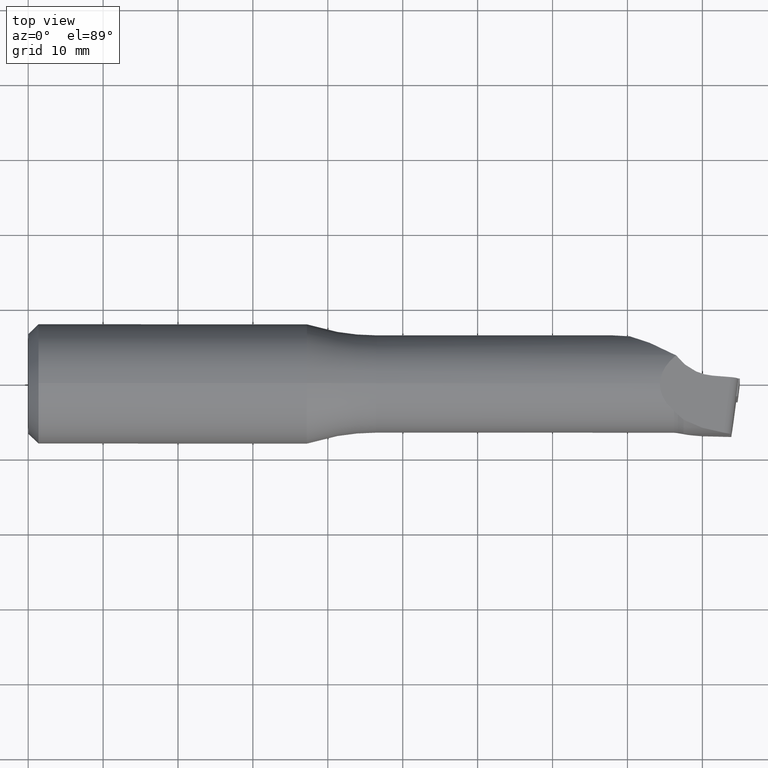
[diagram: clean part render]
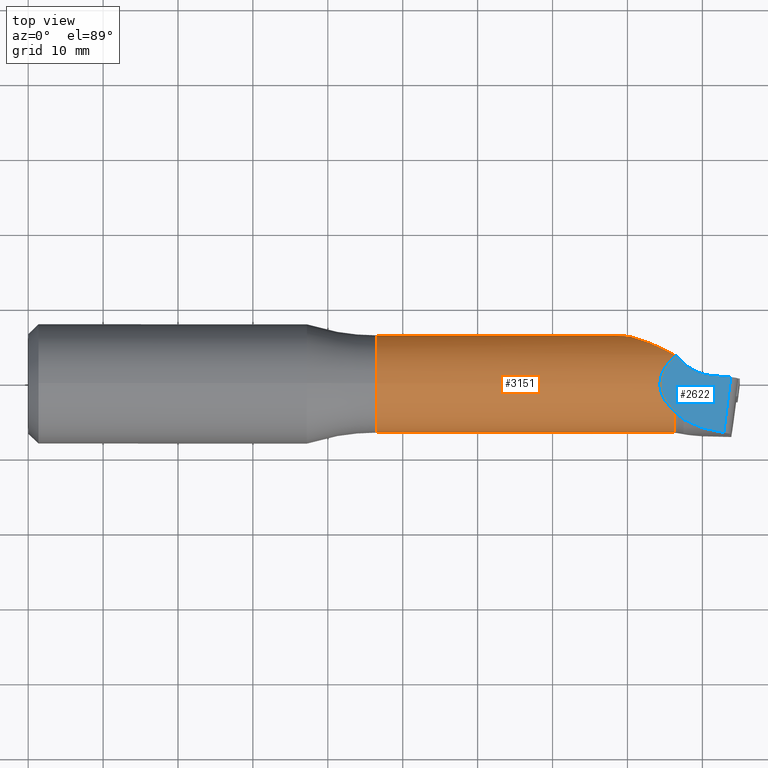
[diagram: same view with the hole feature highlighted: cylindrical wall and planar end face, labeled with their STEP entity ids]
A machine part, top view. The highlighted faces form one hole feature of diameter 13.05 mm: the cylindrical wall (entity #3151, orange) and its adjacent planar end face (entity #2622, blue) — they share a circular edge in the B-rep.
Wall:
#60 = CARTESIAN_POINT ( 'NONE',  ( 86.23061127999569900, -3.702845871241291500, 5.372574564753041000 ) ) ;
#86 = DIRECTION ( 'NONE',  ( -1.000000000000000000, -0.0000000000000000000, -0.0000000000000000000 ) ) ;
#91 = CARTESIAN_POINT ( 'NONE',  ( 85.65121490969625000, -1.614038353073226300, -6.334743030728534800 ) ) ;
#105 = CIRCLE ( 'NONE', #718, 6.524999999999999500 ) ;
#106 = CARTESIAN_POINT ( 'NONE',  ( 86.23061127999569900, -4.355790491442360400, -4.858262466629438900 ) ) ;
#133 = CARTESIAN_POINT ( 'NONE',  ( 85.95065152410997200, -3.593082822807023700, -5.450120725736031300 ) ) ;
#147 = CARTESIAN_POINT ( 'NONE',  ( 76.46034890174081500, 6.149994192479361700, -2.224178600920144100 ) ) ;
#216 = CARTESIAN_POINT ( 'NONE',  ( 81.10959519269270900, -0.005562088175553078800, -6.525286672151020500 ) ) ;
#363 = EDGE_CURVE ( 'NONE', #2031, #420, #2911, .T. ) ;
#376 = AXIS2_PLACEMENT_3D ( 'NONE', #2570, #1516, #406 ) ;
#406 = DIRECTION ( 'NONE',  ( 0.0000000000000000000, 0.0000000000000000000, 1.000000000000000000 ) ) ;
#412 = CARTESIAN_POINT ( 'NONE',  ( 85.99741047501888100, -3.755744622499114000, -5.339248468892365400 ) ) ;
#420 = VERTEX_POINT ( 'NONE', #106 ) ;
#434 = B_SPLINE_CURVE_WITH_KNOTS ( 'NONE', 3,
 ( #683, #1235, #1546, #2884, #2325, #966, #2871, #1207, #3114, #1739, #1245, #1528, #147, #2063, #2338, #2599, #976, #1578, #1324, #2940, #2375, #449, #506, #2653, #2909, #2385, #3173, #1857, #2090, #1035, #755, #987, #1308, #3496, #2897, #1602, #2612, #3234, #3217, #3510, #3203, #2626, #3467, #216, #2141, #1553 ),
 .UNSPECIFIED., .F., .F.,
 ( 4, 2, 2, 2, 2, 2, 2, 2, 2, 2, 2, 2, 2, 2, 2, 2, 2, 2, 2, 2, 2, 2, 4 ),
 ( 0.0000000000000000000, 0.003347499554930291700, 0.005021249332395436900, 0.006694999109860583400, 0.01004249866479090500, 0.01171624844225605300, 0.01338999821972119800, 0.01506374799718634500, 0.01590062288591890400, 0.01631906033028519500, 0.01673749777465148600, 0.01715593521901777300, 0.01757437266338406100, 0.01799281010775034800, 0.01841124755211663600, 0.01882968499648292000, 0.01924812244084920700, 0.02008499732958177900, 0.02092187221831435700, 0.02175874710704693200, 0.02343249688451208200, 0.02510624666197723200, 0.02677999643944238600 ),
 .UNSPECIFIED. ) ;
#444 = EDGE_CURVE ( 'NONE', #3481, #3481, #3382, .T. ) ;
#449 = CARTESIAN_POINT ( 'NONE',  ( 74.46071014795448700, 4.115041673605922800, -5.065714872911455800 ) ) ;
#506 = CARTESIAN_POINT ( 'NONE',  ( 74.44396656498213400, 4.005101328589423900, -5.153149368889238200 ) ) ;
#585 = ORIENTED_EDGE ( 'NONE', *, *, #444, .F. ) ;
#620 = CARTESIAN_POINT ( 'NONE',  ( 82.23619642221048300, -0.03573079569139822600, -6.524902168633604800 ) ) ;
#683 = CARTESIAN_POINT ( 'NONE',  ( 86.23061127999569900, 3.858172834153674300, 5.262140950392588200 ) ) ;
#693 = DIRECTION ( 'NONE',  ( 1.000000000000000000, 0.0000000000000000000, 0.0000000000000000000 ) ) ;
#709 = LINE ( 'NONE', #1291, #2205 ) ;
#718 = AXIS2_PLACEMENT_3D ( 'NONE', #1531, #1780, #2065 ) ;
#742 = CARTESIAN_POINT ( 'NONE',  ( 86.23061127999569900, 3.858172834153674300, 5.262140950392588200 ) ) ;
#755 = CARTESIAN_POINT ( 'NONE',  ( 74.82766434348297900, 2.606149237644900500, -5.983085736255825200 ) ) ;
#760 = EDGE_LOOP ( 'NONE', ( #585 ) ) ;
#901 = DIRECTION ( 'NONE',  ( 0.0000000000000000000, 0.0000000000000000000, 1.000000000000000000 ) ) ;
#953 = CARTESIAN_POINT ( 'NONE',  ( 85.65092830108879700, -0.03573079569122290800, -6.524902168633004400 ) ) ;
#966 = CARTESIAN_POINT ( 'NONE',  ( 81.72435886483985700, 5.943105887355356400, 2.717766312071919100 ) ) ;
#976 = CARTESIAN_POINT ( 'NONE',  ( 74.84265935526859400, 4.983410941142663500, -4.220092962777843400 ) ) ;
#987 = CARTESIAN_POINT ( 'NONE',  ( 74.98932085734387000, 2.389859570945962000, -6.072717678883399200 ) ) ;
#991 = EDGE_CURVE ( 'NONE', #1801, #2150, #2106, .T. ) ;
#992 = CARTESIAN_POINT ( 'NONE',  ( -3.175455607189903200, 0.0000000000000000000, 0.0000000000000000000 ) ) ;
#1035 = CARTESIAN_POINT ( 'NONE',  ( 74.75552049374699900, 2.717677429860034400, -5.933480203728634300 ) ) ;
#1040 = CYLINDRICAL_SURFACE ( 'NONE', #1732, 6.525000000000001200 ) ;
#1050 = CARTESIAN_POINT ( 'NONE',  ( 86.23061127999569900, 3.499725246554350900, 5.507045323822031200 ) ) ;
#1072 = EDGE_LOOP ( 'NONE', ( #2690, #3523, #1585, #2142, #1952, #1527 ) ) ;
#1207 = CARTESIAN_POINT ( 'NONE',  ( 80.03744620957932900, 6.434889271027337500, 1.312441113708917100 ) ) ;
#1209 = CARTESIAN_POINT ( 'NONE',  ( 85.82748502602081000, -3.092544355887509900, -5.758952577806411500 ) ) ;
#1235 = CARTESIAN_POINT ( 'NONE',  ( 85.25865749983371700, 4.325289461866348400, 4.919653605334288700 ) ) ;
#1245 = CARTESIAN_POINT ( 'NONE',  ( 77.60874603235870900, 6.456180310566815600, -1.029434732691144600 ) ) ;
#1291 = CARTESIAN_POINT ( 'NONE',  ( -3.175455607189906700, -0.03573079569149054800, -6.524902168633585300 ) ) ;
#1302 = CARTESIAN_POINT ( 'NONE',  ( 86.23061127999569900, -3.702845871241291500, 5.372574564753041000 ) ) ;
#1308 = CARTESIAN_POINT ( 'NONE',  ( 75.07921436551718800, 2.284867520326124200, -6.112780343141059400 ) ) ;
#1324 = CARTESIAN_POINT ( 'NONE',  ( 74.63122522758861500, 4.626425176592463600, -4.603291921419359900 ) ) ;
#1408 = EDGE_CURVE ( 'NONE', #1440, #1959, #434, .T. ) ;
#1440 = VERTEX_POINT ( 'NONE', #742 ) ;
#1442 = FACE_OUTER_BOUND ( 'NONE', #760, .T. ) ;
#1516 = DIRECTION ( 'NONE',  ( -1.000000000000000000, -0.0000000000000000000, -0.0000000000000000000 ) ) ;
#1527 = ORIENTED_EDGE ( 'NONE', *, *, #1408, .T. ) ;
#1528 = CARTESIAN_POINT ( 'NONE',  ( 76.83630588780749800, 6.277715265940339700, -1.825456411750528800 ) ) ;
#1531 = CARTESIAN_POINT ( 'NONE',  ( 86.23061127999569900, 0.0000000000000000000, 0.0000000000000000000 ) ) ;
#1546 = CARTESIAN_POINT ( 'NONE',  ( 84.34692601890260700, 4.797780989750240400, 4.474824379446401300 ) ) ;
#1553 = CARTESIAN_POINT ( 'NONE',  ( 82.23619642221048300, -0.03573079569139822600, -6.524902168633604800 ) ) ;
#1578 = CARTESIAN_POINT ( 'NONE',  ( 74.68002190042261600, 4.719026884751423600, -4.508147770059248500 ) ) ;
#1585 = ORIENTED_EDGE ( 'NONE', *, *, #1605, .T. ) ;
#1602 = CARTESIAN_POINT ( 'NONE',  ( 76.03284611181113900, 1.481527842799918100, -6.356830922926667100 ) ) ;
#1605 = EDGE_CURVE ( 'NONE', #420, #1801, #1691, .T. ) ;
#1691 = CIRCLE ( 'NONE', #3134, 6.524999999999999500 ) ;
#1720 = CARTESIAN_POINT ( 'NONE',  ( 85.67885006257741100, -2.003627855350393400, -6.222363190622492500 ) ) ;
#1732 = AXIS2_PLACEMENT_3D ( 'NONE', #992, #3459, #2631 ) ;
#1739 = CARTESIAN_POINT ( 'NONE',  ( 78.00651606336556700, 6.506424541765675900, -0.6313227019914711100 ) ) ;
#1780 = DIRECTION ( 'NONE',  ( -1.000000000000000000, -0.0000000000000000000, -0.0000000000000000000 ) ) ;
#1801 = VERTEX_POINT ( 'NONE', #1302 ) ;
#1857 = CARTESIAN_POINT ( 'NONE',  ( 74.57821308855164900, 3.067447976232391400, -5.760624856454017000 ) ) ;
#1952 = ORIENTED_EDGE ( 'NONE', *, *, #2025, .T. ) ;
#1959 = VERTEX_POINT ( 'NONE', #620 ) ;
#2025 = EDGE_CURVE ( 'NONE', #2150, #1440, #105, .T. ) ;
#2031 = VERTEX_POINT ( 'NONE', #953 ) ;
#2043 = CARTESIAN_POINT ( 'NONE',  ( 86.23061127999569900, -4.355790491442360400, -4.858262466629438900 ) ) ;
#2063 = CARTESIAN_POINT ( 'NONE',  ( 75.74170042579481800, 5.795526035033889300, -3.030062209520679500 ) ) ;
#2065 = DIRECTION ( 'NONE',  ( 0.0000000000000000000, 0.0000000000000000000, 1.000000000000000000 ) ) ;
#2090 = CARTESIAN_POINT ( 'NONE',  ( 74.63081790112879300, 2.947933436709585700, -5.822512034641050600 ) ) ;
#2106 =( BOUNDED_CURVE ( )  B_SPLINE_CURVE ( 3, ( #60, #2545, #2825, #3371 ),
 .UNSPECIFIED., .F., .F. ) 
 B_SPLINE_CURVE_WITH_KNOTS ( ( 4, 4 ),
 ( 5.698403643467864700, 6.867966970891306900 ),
 .UNSPECIFIED. ) 
 CURVE ( )  GEOMETRIC_REPRESENTATION_ITEM ( )  RATIONAL_B_SPLINE_CURVE ( ( 1.000000000000000000, 0.8892217541185157800, 0.8892217541185157800, 1.000000000000000000 ) ) 
 REPRESENTATION_ITEM ( '' )  );
#2141 = CARTESIAN_POINT ( 'NONE',  ( 81.67064380493312100, -0.03573079569129727900, -6.524902168633588000 ) ) ;
#2142 = ORIENTED_EDGE ( 'NONE', *, *, #991, .T. ) ;
#2150 = VERTEX_POINT ( 'NONE', #1050 ) ;
#2205 = VECTOR ( 'NONE', #693, 1000.000000000000000 ) ;
#2288 = CARTESIAN_POINT ( 'NONE',  ( 85.63143692249637700, -0.4362650223973131800, -6.522708816725765000 ) ) ;
#2305 = CARTESIAN_POINT ( 'NONE',  ( 85.76717458828004200, -2.741158867276664200, -5.934507251920775800 ) ) ;
#2325 = CARTESIAN_POINT ( 'NONE',  ( 82.58795335344841200, 5.605870402943085500, 3.358716769952128100 ) ) ;
#2338 = CARTESIAN_POINT ( 'NONE',  ( 75.40592117706322000, 5.573526455028678900, -3.428080811893543100 ) ) ;
#2375 = CARTESIAN_POINT ( 'NONE',  ( 74.51217623063583100, 4.327516703230375400, -4.885451292604592800 ) ) ;
#2385 = CARTESIAN_POINT ( 'NONE',  ( 74.46991696561278200, 3.422598059609077000, -5.557082363059018700 ) ) ;
#2545 = CARTESIAN_POINT ( 'NONE',  ( 83.62285550286804900, -1.479362768084573300, 6.905027047090453800 ) ) ;
#2558 = CARTESIAN_POINT ( 'NONE',  ( 85.65092830108879700, -0.03573079569122290800, -6.524902168633004400 ) ) ;
#2561 = EDGE_CURVE ( 'NONE', #1959, #2031, #709, .T. ) ;
#2570 = CARTESIAN_POINT ( 'NONE',  ( 46.49999999999998600, 0.0000000000000000000, 0.0000000000000000000 ) ) ;
#2583 = CARTESIAN_POINT ( 'NONE',  ( 86.16252283513057400, -4.214430662660859600, -4.985001975313537900 ) ) ;
#2591 = CARTESIAN_POINT ( 'NONE',  ( 86.10331338750017900, -4.066042293082052300, -5.106906299597486800 ) ) ;
#2599 = CARTESIAN_POINT ( 'NONE',  ( 74.97308660399096400, 5.142450855959150900, -4.023791960761554900 ) ) ;
#2612 = CARTESIAN_POINT ( 'NONE',  ( 76.27504901142019400, 1.334577627042732300, -6.388465429668203300 ) ) ;
#2626 = CARTESIAN_POINT ( 'NONE',  ( 79.44511042653418500, 0.2097157157928928600, -6.522909333174473200 ) ) ;
#2631 = DIRECTION ( 'NONE',  ( 0.0000000000000000000, 0.0000000000000000000, 1.000000000000000000 ) ) ;
#2653 = CARTESIAN_POINT ( 'NONE',  ( 74.43177676948199900, 3.777147863742521800, -5.322493690534314800 ) ) ;
#2690 = ORIENTED_EDGE ( 'NONE', *, *, #2561, .T. ) ;
#2825 = CARTESIAN_POINT ( 'NONE',  ( 83.62285550286804900, 1.220590340513384400, 6.955434705414965000 ) ) ;
#2871 = CARTESIAN_POINT ( 'NONE',  ( 81.29584264792087800, 6.088941533274301300, 2.374675800230689600 ) ) ;
#2884 = CARTESIAN_POINT ( 'NONE',  ( 83.02242154298181700, 5.415129143645363500, 3.656334779634766700 ) ) ;
#2897 = CARTESIAN_POINT ( 'NONE',  ( 75.57644927276415100, 1.808826083859220900, -6.271552625149422700 ) ) ;
#2909 = CARTESIAN_POINT ( 'NONE',  ( 74.43666107217158900, 3.658493508904053100, -5.404698614425080400 ) ) ;
#2911 = B_SPLINE_CURVE_WITH_KNOTS ( 'NONE', 3,
 ( #2558, #2288, #3106, #91, #1720, #2305, #1209, #133, #412, #2591, #2583, #2043 ),
 .UNSPECIFIED., .F., .F.,
 ( 4, 2, 2, 2, 2, 4 ),
 ( 0.0001997699077066773800, 0.001392004146775603500, 0.002584238385844529500, 0.003776472624913455500, 0.004372589744447922200, 0.004968706863982391500 ),
 .UNSPECIFIED. ) ;
#2940 = CARTESIAN_POINT ( 'NONE',  ( 74.54721524422329500, 4.430677214505614400, -4.791993932516412300 ) ) ;
#3106 = CARTESIAN_POINT ( 'NONE',  ( 85.62781528332399700, -0.8319977210767468500, -6.483970146652293200 ) ) ;
#3111 = CARTESIAN_POINT ( 'NONE',  ( 86.23061127999569900, 0.0000000000000000000, 0.0000000000000000000 ) ) ;
#3114 = CARTESIAN_POINT ( 'NONE',  ( 79.22240721958002000, 6.549345649230859000, 0.5547172738095874600 ) ) ;
#3133 = FACE_OUTER_BOUND ( 'NONE', #1072, .T. ) ;
#3134 = AXIS2_PLACEMENT_3D ( 'NONE', #3111, #86, #901 ) ;
#3151 = ADVANCED_FACE ( 'NONE', ( #1442, #3133 ), #1040, .T. ) ;
#3173 = CARTESIAN_POINT ( 'NONE',  ( 74.49811057998874700, 3.304275500776306700, -5.628125730530329400 ) ) ;
#3203 = CARTESIAN_POINT ( 'NONE',  ( 78.35265037132684500, 0.4678383809541479800, -6.509489542166218000 ) ) ;
#3217 = CARTESIAN_POINT ( 'NONE',  ( 77.02544859745022200, 0.9535667872557110900, -6.455834888856212000 ) ) ;
#3234 = CARTESIAN_POINT ( 'NONE',  ( 76.77050386640982500, 1.071119443386411300, -6.437879396716619200 ) ) ;
#3371 = CARTESIAN_POINT ( 'NONE',  ( 86.23061127999569900, 3.499725246554350900, 5.507045323822031200 ) ) ;
#3382 = CIRCLE ( 'NONE', #376, 6.525000000000003000 ) ;
#3408 = CARTESIAN_POINT ( 'NONE',  ( 46.49999999999998600, 0.0000000000000000000, 6.525000000000003000 ) ) ;
#3459 = DIRECTION ( 'NONE',  ( -1.000000000000000000, -0.0000000000000000000, -0.0000000000000000000 ) ) ;
#3467 = CARTESIAN_POINT ( 'NONE',  ( 79.99684483681183200, 0.1172681066741676600, -6.524235225812574900 ) ) ;
#3481 = VERTEX_POINT ( 'NONE', #3408 ) ;
#3496 = CARTESIAN_POINT ( 'NONE',  ( 75.36419492137304100, 1.987351722230931400, -6.218550519846046700 ) ) ;
#3510 = CARTESIAN_POINT ( 'NONE',  ( 77.80731962146992900, 0.6350110690538176600, -6.497558069144149700 ) ) ;
#3523 = ORIENTED_EDGE ( 'NONE', *, *, #363, .T. ) ;
End face:
#31 = CARTESIAN_POINT ( 'NONE',  ( 87.48555158900650500, -4.839137958475751200, 4.633869206056534300 ) ) ;
#60 = CARTESIAN_POINT ( 'NONE',  ( 86.23061127999569900, -3.702845871241291500, 5.372574564753041000 ) ) ;
#110 = B_SPLINE_CURVE_WITH_KNOTS ( 'NONE', 3,
 ( #2070, #425, #981, #177 ),
 .UNSPECIFIED., .F., .F.,
 ( 4, 4 ),
 ( 2.877816334501462300E-007, 0.0003858684556919077000 ),
 .UNSPECIFIED. ) ;
#118 = EDGE_LOOP ( 'NONE', ( #1609, #829, #1718, #2681, #707, #1883, #187, #3335 ) ) ;
#177 = CARTESIAN_POINT ( 'NONE',  ( 86.49422329902087400, 3.740163208753565400, 5.360818527861223300 ) ) ;
#187 = ORIENTED_EDGE ( 'NONE', *, *, #3372, .F. ) ;
#213 = EDGE_CURVE ( 'NONE', #2164, #2709, #1830, .T. ) ;
#368 = EDGE_CURVE ( 'NONE', #2359, #495, #459, .T. ) ;
#375 = CARTESIAN_POINT ( 'NONE',  ( 89.40997225853810400, 1.213173825509131800, 3.646609721920704800 ) ) ;
#425 = CARTESIAN_POINT ( 'NONE',  ( 86.31993260703276900, 3.577790591510965300, 5.457434826257422600 ) ) ;
#459 =( BOUNDED_CURVE ( )  B_SPLINE_CURVE ( 3, ( #2328, #699, #971, #1480 ),
 .UNSPECIFIED., .F., .F. ) 
 B_SPLINE_CURVE_WITH_KNOTS ( ( 4, 4 ),
 ( 0.7883959201193251300, 1.322814334794387900 ),
 .UNSPECIFIED. ) 
 CURVE ( )  GEOMETRIC_REPRESENTATION_ITEM ( )  RATIONAL_B_SPLINE_CURVE ( ( 1.000000000000000000, 0.9763410229081168600, 0.9763410229081168600, 1.000000000000000000 ) ) 
 REPRESENTATION_ITEM ( '' )  );
#495 = VERTEX_POINT ( 'NONE', #1818 ) ;
#508 = DIRECTION ( 'NONE',  ( 0.1215687888871665600, 0.9912720265122597600, -0.05099802959708468800 ) ) ;
#511 = CARTESIAN_POINT ( 'NONE',  ( 93.78289693617811900, 0.9054891681680588000, 1.140719281962373700 ) ) ;
#540 = CARTESIAN_POINT ( 'NONE',  ( 86.40974799706893400, -3.855585428779915600, 5.267304543240893400 ) ) ;
#663 = FACE_OUTER_BOUND ( 'NONE', #118, .T. ) ;
#699 = CARTESIAN_POINT ( 'NONE',  ( 88.98426372537008400, -5.674590679477652200, 3.761408030538675000 ) ) ;
#707 = ORIENTED_EDGE ( 'NONE', *, *, #3120, .F. ) ;
#772 = CARTESIAN_POINT ( 'NONE',  ( 91.31566004698329700, 1.079087158710360800, 2.554561456139146100 ) ) ;
#829 = ORIENTED_EDGE ( 'NONE', *, *, #1041, .T. ) ;
#971 = CARTESIAN_POINT ( 'NONE',  ( 90.82314442748617000, -6.250029191210225900, 2.699315628235333900 ) ) ;
#972 = CARTESIAN_POINT ( 'NONE',  ( 91.31566004698329700, 1.079087158710360800, 2.554561456139146100 ) ) ;
#981 = CARTESIAN_POINT ( 'NONE',  ( 86.40768669577318000, 3.658103793261197700, 5.408762337886272100 ) ) ;
#991 = EDGE_CURVE ( 'NONE', #1801, #2150, #2106, .T. ) ;
#1041 = EDGE_CURVE ( 'NONE', #495, #2709, #2840, .T. ) ;
#1050 = CARTESIAN_POINT ( 'NONE',  ( 86.23061127999569900, 3.499725246554350900, 5.507045323822031200 ) ) ;
#1055 = AXIS2_PLACEMENT_3D ( 'NONE', #3171, #3439, #1789 ) ;
#1173 = CARTESIAN_POINT ( 'NONE',  ( 86.49422329902087400, 3.740163208753565400, 5.360818527861223300 ) ) ;
#1212 = CARTESIAN_POINT ( 'NONE',  ( 86.49422329902087400, 3.740163208753565400, 5.360818527861223300 ) ) ;
#1279 = PLANE ( 'NONE',  #1055 ) ;
#1285 = B_SPLINE_CURVE_WITH_KNOTS ( 'NONE', 3,
 ( #1658, #2178, #540, #1904 ),
 .UNSPECIFIED., .F., .F.,
 ( 4, 4 ),
 ( 3.051964471923174400E-007, 0.0007733544345945619100 ),
 .UNSPECIFIED. ) ;
#1302 = CARTESIAN_POINT ( 'NONE',  ( 86.23061127999569900, -3.702845871241291500, 5.372574564753041000 ) ) ;
#1480 = CARTESIAN_POINT ( 'NONE',  ( 92.87167558613644800, -6.524610633972875100, 1.522976058593189100 ) ) ;
#1489 = CARTESIAN_POINT ( 'NONE',  ( 87.22264182479516100, -4.627226484693181900, 4.788139785533588500 ) ) ;
#1538 = EDGE_CURVE ( 'NONE', #2359, #2844, #3006, .T. ) ;
#1609 = ORIENTED_EDGE ( 'NONE', *, *, #368, .T. ) ;
#1658 = CARTESIAN_POINT ( 'NONE',  ( 86.75155581299650000, -4.184586498378102700, 5.065739289233169600 ) ) ;
#1718 = ORIENTED_EDGE ( 'NONE', *, *, #213, .F. ) ;
#1789 = DIRECTION ( 'NONE',  ( -0.8681292163194530600, 0.0000000000000000000, 0.4963382553990497400 ) ) ;
#1801 = VERTEX_POINT ( 'NONE', #1302 ) ;
#1818 = CARTESIAN_POINT ( 'NONE',  ( 92.87167558613644800, -6.524610633972875100, 1.522976058593189100 ) ) ;
#1830 = LINE ( 'NONE', #2176, #3208 ) ;
#1861 = CARTESIAN_POINT ( 'NONE',  ( 93.81723305517667200, 1.185465916919353100, 1.126315301886843000 ) ) ;
#1883 = ORIENTED_EDGE ( 'NONE', *, *, #991, .F. ) ;
#1884 = CARTESIAN_POINT ( 'NONE',  ( 86.75155581299650000, -4.184586498378102700, 5.065739289233169600 ) ) ;
#1904 = CARTESIAN_POINT ( 'NONE',  ( 86.23061127999569900, -3.702845871241291500, 5.372574564753041000 ) ) ;
#2070 = CARTESIAN_POINT ( 'NONE',  ( 86.23061127999569900, 3.499725246554350900, 5.507045323822031200 ) ) ;
#2106 =( BOUNDED_CURVE ( )  B_SPLINE_CURVE ( 3, ( #60, #2545, #2825, #3371 ),
 .UNSPECIFIED., .F., .F. ) 
 B_SPLINE_CURVE_WITH_KNOTS ( ( 4, 4 ),
 ( 5.698403643467864700, 6.867966970891306900 ),
 .UNSPECIFIED. ) 
 CURVE ( )  GEOMETRIC_REPRESENTATION_ITEM ( )  RATIONAL_B_SPLINE_CURVE ( ( 1.000000000000000000, 0.8892217541185157800, 0.8892217541185157800, 1.000000000000000000 ) ) 
 REPRESENTATION_ITEM ( '' )  );
#2150 = VERTEX_POINT ( 'NONE', #1050 ) ;
#2164 = VERTEX_POINT ( 'NONE', #772 ) ;
#2176 = CARTESIAN_POINT ( 'NONE',  ( 102.0846271821516400, 0.3213686505814514800, -3.616560568950813800 ) ) ;
#2178 = CARTESIAN_POINT ( 'NONE',  ( 86.58269037114392600, -4.017173913358814900, 5.165410825051614200 ) ) ;
#2185 = DIRECTION ( 'NONE',  ( 0.8660254037844397100, -0.06093467170257311400, -0.4962730758206591600 ) ) ;
#2328 = CARTESIAN_POINT ( 'NONE',  ( 87.48555158900650500, -4.839137958475751200, 4.633869206056534300 ) ) ;
#2359 = VERTEX_POINT ( 'NONE', #31 ) ;
#2391 = VERTEX_POINT ( 'NONE', #1173 ) ;
#2545 = CARTESIAN_POINT ( 'NONE',  ( 83.62285550286804900, -1.479362768084573300, 6.905027047090453800 ) ) ;
#2617 =( BOUNDED_CURVE ( )  B_SPLINE_CURVE ( 3, ( #1212, #3108, #375, #972 ),
 .UNSPECIFIED., .F., .T. ) 
 B_SPLINE_CURVE_WITH_KNOTS ( ( 4, 4 ),
 ( 0.3447567354024803600, 1.122363677382135700 ),
 .UNSPECIFIED. ) 
 CURVE ( )  GEOMETRIC_REPRESENTATION_ITEM ( )  RATIONAL_B_SPLINE_CURVE ( ( 1.000000000000000000, 0.9502422027527979200, 0.9502422027527979200, 1.000000000000000000 ) ) 
 REPRESENTATION_ITEM ( '' )  );
#2622 = ADVANCED_FACE ( 'NONE', ( #663 ), #1279, .F. ) ;
#2681 = ORIENTED_EDGE ( 'NONE', *, *, #2997, .F. ) ;
#2709 = VERTEX_POINT ( 'NONE', #511 ) ;
#2796 = CARTESIAN_POINT ( 'NONE',  ( 86.97781050408488600, -4.408894576409344300, 4.932194187882013900 ) ) ;
#2825 = CARTESIAN_POINT ( 'NONE',  ( 83.62285550286804900, 1.220590340513384400, 6.955434705414965000 ) ) ;
#2830 = CARTESIAN_POINT ( 'NONE',  ( 87.48555158900650500, -4.839137958475751200, 4.633869206056534300 ) ) ;
#2840 = LINE ( 'NONE', #1861, #3284 ) ;
#2844 = VERTEX_POINT ( 'NONE', #1884 ) ;
#2997 = EDGE_CURVE ( 'NONE', #2391, #2164, #2617, .T. ) ;
#3006 =( BOUNDED_CURVE ( )  B_SPLINE_CURVE ( 3, ( #2830, #1489, #2796, #3121 ),
 .UNSPECIFIED., .F., .F. ) 
 B_SPLINE_CURVE_WITH_KNOTS ( ( 4, 4 ),
 ( 2.554267302404247300, 2.644492771381341100 ),
 .UNSPECIFIED. ) 
 CURVE ( )  GEOMETRIC_REPRESENTATION_ITEM ( )  RATIONAL_B_SPLINE_CURVE ( ( 1.000000000000000000, 0.9993217287731670500, 0.9993217287731670500, 1.000000000000000000 ) ) 
 REPRESENTATION_ITEM ( '' )  );
#3108 = CARTESIAN_POINT ( 'NONE',  ( 87.71867126390598900, 2.146646731094681700, 4.631010352827251700 ) ) ;
#3120 = EDGE_CURVE ( 'NONE', #2150, #2391, #110, .T. ) ;
#3121 = CARTESIAN_POINT ( 'NONE',  ( 86.75155581299650000, -4.184586498378102700, 5.065739289233169600 ) ) ;
#3171 = CARTESIAN_POINT ( 'NONE',  ( 94.79999999999999700, 1.035889418943756000, 0.5616422889512368000 ) ) ;
#3208 = VECTOR ( 'NONE', #2185, 1000.000000000000000 ) ;
#3284 = VECTOR ( 'NONE', #508, 1000.000000000000100 ) ;
#3335 = ORIENTED_EDGE ( 'NONE', *, *, #1538, .F. ) ;
#3371 = CARTESIAN_POINT ( 'NONE',  ( 86.23061127999569900, 3.499725246554350900, 5.507045323822031200 ) ) ;
#3372 = EDGE_CURVE ( 'NONE', #2844, #1801, #1285, .T. ) ;
#3439 = DIRECTION ( 'NONE',  ( -0.4962730758206591600, 0.01620569413933423800, -0.8680152128234647200 ) ) ;